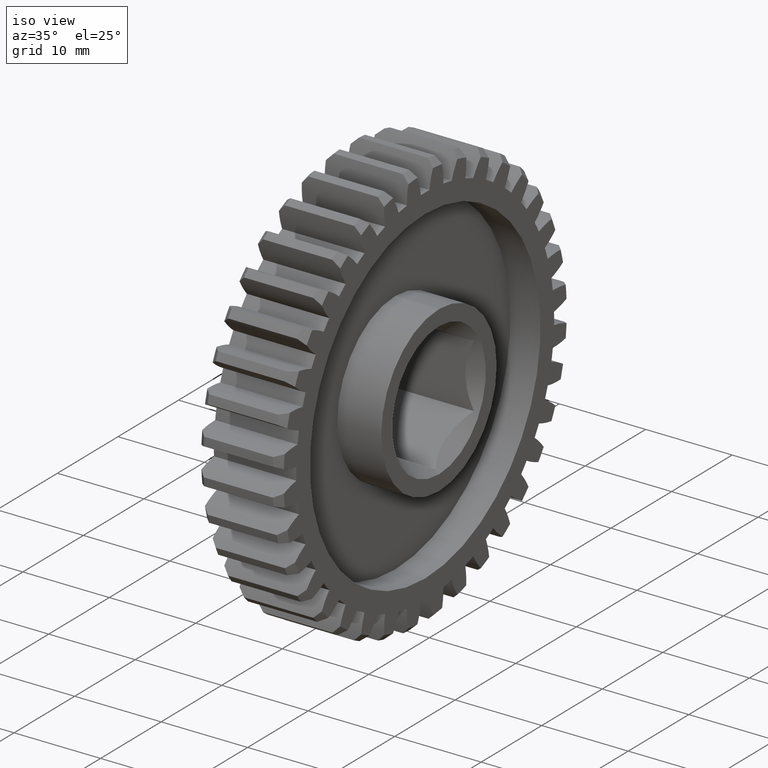
[diagram: clean part render]
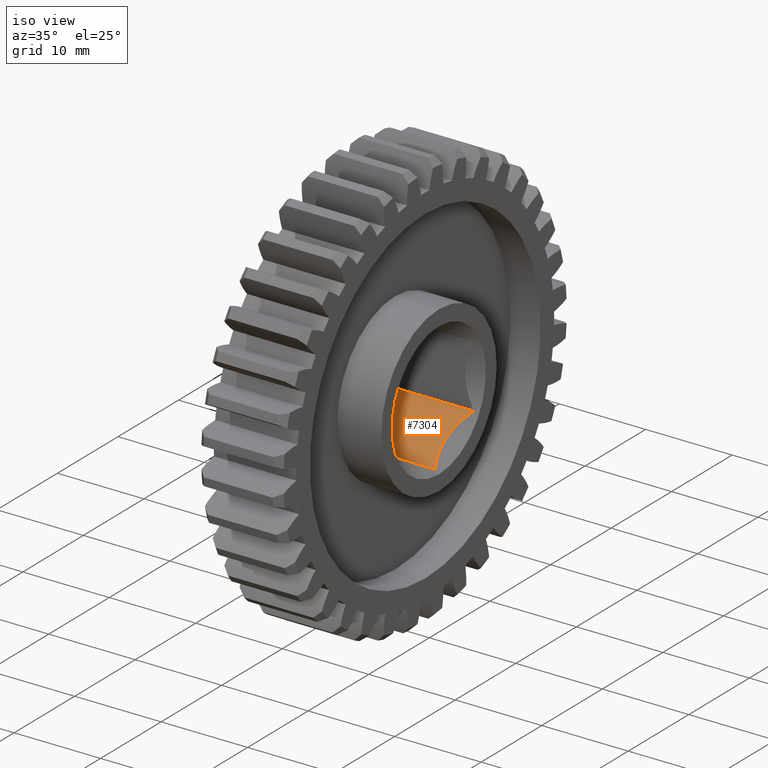
[diagram: same view with one face highlighted and labeled with its STEP entity id]
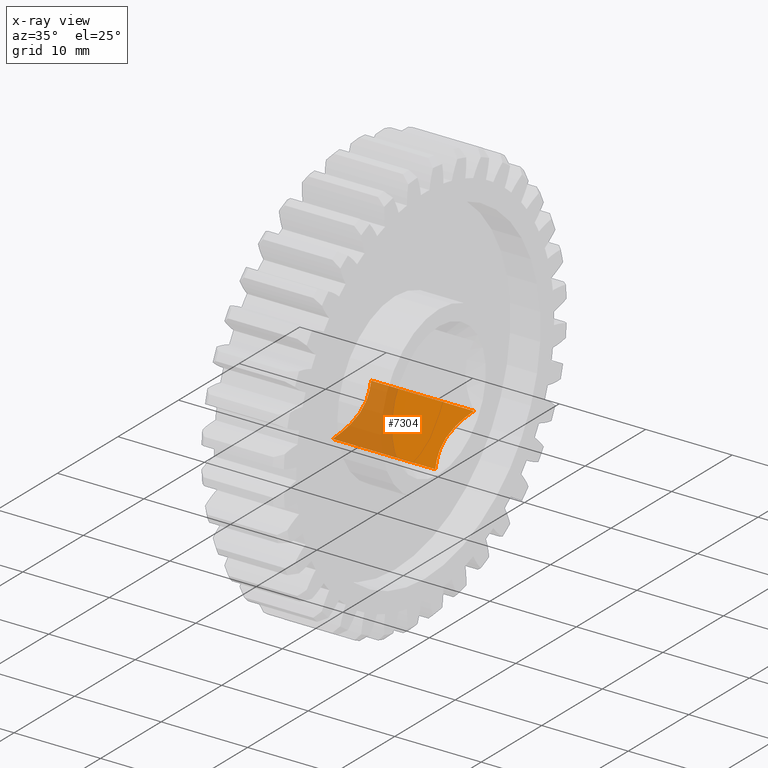
[diagram: x-ray of the same camera — body ghosted, the highlighted face saturated]
A machine part, iso view. The second image highlights one B-rep face of the part: STEP entity #7304.
The next image is the same camera in x-ray: the body ghosted, the highlighted face saturated — about 40% of this face is hidden behind the body in this view.
In plain terms, the highlighted planar face has unit normal (0, 0.5, -0.866).
Its self-contained STEP definition (entity closure, byte-faithful):
#120 = ORIENTED_EDGE ( 'NONE', *, *, #3772, .T. ) ;
#529 = CARTESIAN_POINT ( 'NONE',  ( -0.007527346895463143603, 0.1136276322523038368, -0.2230721905265654059 ) ) ;
#676 = CARTESIAN_POINT ( 'NONE',  ( 0.4098976822178005963, 0.01953312049692422850, -0.2773976822178003676 ) ) ;
#677 = CARTESIAN_POINT ( 'NONE',  ( -0.04617513459481295546, 1.105616642537342427E-16, -0.2886751345948129210 ) ) ;
#685 = B_SPLINE_CURVE_WITH_KNOTS ( 'NONE', 3,
 ( #6661, #676, #3352, #7404, #6188, #6832, #1588, #4908, #6743, #8061, #4785, #6232 ),
 .UNSPECIFIED., .F., .F.,
 ( 4, 2, 2, 2, 2, 4 ),
 ( 2.544317589397581275E-07, 0.001893759980981786755, 0.002840512755593211595, 0.003787265530204636434, 0.005680771079427489149, 0.007574276628650342298 ),
 .UNSPECIFIED. ) ;
#862 = ORIENTED_EDGE ( 'NONE', *, *, #7478, .F. ) ;
#920 = FACE_OUTER_BOUND ( 'NONE', #1921, .T. ) ;
#1176 = CARTESIAN_POINT ( 'NONE',  ( -0.02530907099823744358, 0.03950683726828677772, -0.2658658514631368486 ) ) ;
#1450 = VECTOR ( 'NONE', #7939, 39.37007874015748143 ) ;
#1588 = CARTESIAN_POINT ( 'NONE',  ( 0.3825273468954633049, 0.1136276322523038507, -0.2230721905265654059 ) ) ;
#1674 = LINE ( 'NONE', #3405, #1450 ) ;
#1687 = CARTESIAN_POINT ( 'NONE',  ( -0.02510447491225713257, 0.2101212623329412610, -0.1673615672244251895 ) ) ;
#1907 = EDGE_CURVE ( 'NONE', #7358, #5345, #1674, .T. ) ;
#1921 = EDGE_LOOP ( 'NONE', ( #862, #3384, #120, #7981 ) ) ;
#2888 = CARTESIAN_POINT ( 'NONE',  ( -0.06250000000000001388, 1.105616642537342427E-16, -0.2886751345948129210 ) ) ;
#3189 = CARTESIAN_POINT ( 'NONE',  ( -0.007447000400361525677, 0.1463641677314265477, -0.2041717429553581986 ) ) ;
#3352 = CARTESIAN_POINT ( 'NONE',  ( 0.4003090709982374262, 0.03950683726828675690, -0.2658658514631369041 ) ) ;
#3384 = ORIENTED_EDGE ( 'NONE', *, *, #8591, .T. ) ;
#3405 = CARTESIAN_POINT ( 'NONE',  ( -0.06250000000000001388, 0.2500000000000000000, -0.1443375672974063773 ) ) ;
#3743 = B_SPLINE_CURVE_WITH_KNOTS ( 'NONE', 3,
 ( #4502, #7158, #1176, #3856, #6508, #5020, #529, #3189, #5871, #1687, #4375, #7206 ),
 .UNSPECIFIED., .F., .F.,
 ( 4, 2, 2, 2, 2, 4 ),
 ( 2.544317589398813708E-07, 0.001893759980981787189, 0.002840512755593211595, 0.003787265530204636001, 0.005680771079427488282, 0.007574276628650341431 ),
 .UNSPECIFIED. ) ;
#3772 = EDGE_CURVE ( 'NONE', #7270, #5345, #685, .T. ) ;
#3856 = CARTESIAN_POINT ( 'NONE',  ( -0.01503392178509950321, 0.07053907455292381112, -0.2479493809132952697 ) ) ;
#4028 = VECTOR ( 'NONE', #6957, 39.37007874015748143 ) ;
#4284 = DIRECTION ( 'NONE',  ( 0.000000000000000000, 0.5000000000000004441, -0.8660254037844383745 ) ) ;
#4375 = CARTESIAN_POINT ( 'NONE',  ( -0.03483126945468069391, 0.2303518492230909320, -0.1556814324375331848 ) ) ;
#4502 = CARTESIAN_POINT ( 'NONE',  ( -0.04617513459481295546, 1.105616642537342427E-16, -0.2886751345948129210 ) ) ;
#4785 = CARTESIAN_POINT ( 'NONE',  ( 0.4098312694546807355, 0.2303518492230909320, -0.1556814324375331571 ) ) ;
#4817 = CARTESIAN_POINT ( 'NONE',  ( -0.04617513459481289301, 0.2500000000000000000, -0.1443375672974063773 ) ) ;
#4908 = CARTESIAN_POINT ( 'NONE',  ( 0.3824470004003616141, 0.1463641677314265754, -0.2041717429553581986 ) ) ;
#5020 = CARTESIAN_POINT ( 'NONE',  ( -0.008539985234482672799, 0.1025577801058271954, -0.2294633726432230292 ) ) ;
#5345 = VERTEX_POINT ( 'NONE', #6439 ) ;
#5871 = CARTESIAN_POINT ( 'NONE',  ( -0.01126284641317530470, 0.1678158816462109182, -0.1917865901520785510 ) ) ;
#6188 = CARTESIAN_POINT ( 'NONE',  ( 0.3873007206989254603, 0.08106364779137494037, -0.2418730157209695031 ) ) ;
#6232 = CARTESIAN_POINT ( 'NONE',  ( 0.4211751345948129277, 0.2500000000000000000, -0.1443375672974063773 ) ) ;
#6245 = LINE ( 'NONE', #7669, #4028 ) ;
#6259 = DIRECTION ( 'NONE',  ( 0.000000000000000000, 0.8660254037844383745, 0.5000000000000004441 ) ) ;
#6278 = AXIS2_PLACEMENT_3D ( 'NONE', #2888, #4284, #6259 ) ;
#6439 = CARTESIAN_POINT ( 'NONE',  ( 0.4211751345948129277, 0.2500000000000000000, -0.1443375672974063773 ) ) ;
#6508 = CARTESIAN_POINT ( 'NONE',  ( -0.01230072069892556436, 0.08106364779137498200, -0.2418730157209696419 ) ) ;
#6661 = CARTESIAN_POINT ( 'NONE',  ( 0.4211751345948129832, 1.068145004154505956E-16, -0.2886751345948129210 ) ) ;
#6743 = CARTESIAN_POINT ( 'NONE',  ( 0.3862628464131752093, 0.1678158816462110015, -0.1917865901520785510 ) ) ;
#6832 = CARTESIAN_POINT ( 'NONE',  ( 0.3835399852344826277, 0.1025577801058272093, -0.2294633726432231124 ) ) ;
#6856 = PLANE ( 'NONE',  #6278 ) ;
#6957 = DIRECTION ( 'NONE',  ( 1.000000000000000000, -0.000000000000000000, -0.000000000000000000 ) ) ;
#7158 = CARTESIAN_POINT ( 'NONE',  ( -0.03489768221780045060, 0.01953312049692424238, -0.2773976822178004231 ) ) ;
#7206 = CARTESIAN_POINT ( 'NONE',  ( -0.04617513459481289301, 0.2500000000000000000, -0.1443375672974063773 ) ) ;
#7270 = VERTEX_POINT ( 'NONE', #8224 ) ;
#7304 = ADVANCED_FACE ( 'NONE', ( #920 ), #6856, .F. ) ;
#7358 = VERTEX_POINT ( 'NONE', #4817 ) ;
#7404 = CARTESIAN_POINT ( 'NONE',  ( 0.3900339217850995466, 0.07053907455292379725, -0.2479493809132952697 ) ) ;
#7478 = EDGE_CURVE ( 'NONE', #8415, #7358, #3743, .T. ) ;
#7669 = CARTESIAN_POINT ( 'NONE',  ( -0.06250000000000001388, 1.105616642537342427E-16, -0.2886751345948129210 ) ) ;
#7939 = DIRECTION ( 'NONE',  ( 1.000000000000000000, -0.000000000000000000, -0.000000000000000000 ) ) ;
#7981 = ORIENTED_EDGE ( 'NONE', *, *, #1907, .F. ) ;
#8061 = CARTESIAN_POINT ( 'NONE',  ( 0.4001044749122571464, 0.2101212623329413165, -0.1673615672244252173 ) ) ;
#8224 = CARTESIAN_POINT ( 'NONE',  ( 0.4211751345948129832, 1.068145004154505956E-16, -0.2886751345948129210 ) ) ;
#8415 = VERTEX_POINT ( 'NONE', #677 ) ;
#8591 = EDGE_CURVE ( 'NONE', #8415, #7270, #6245, .T. ) ;